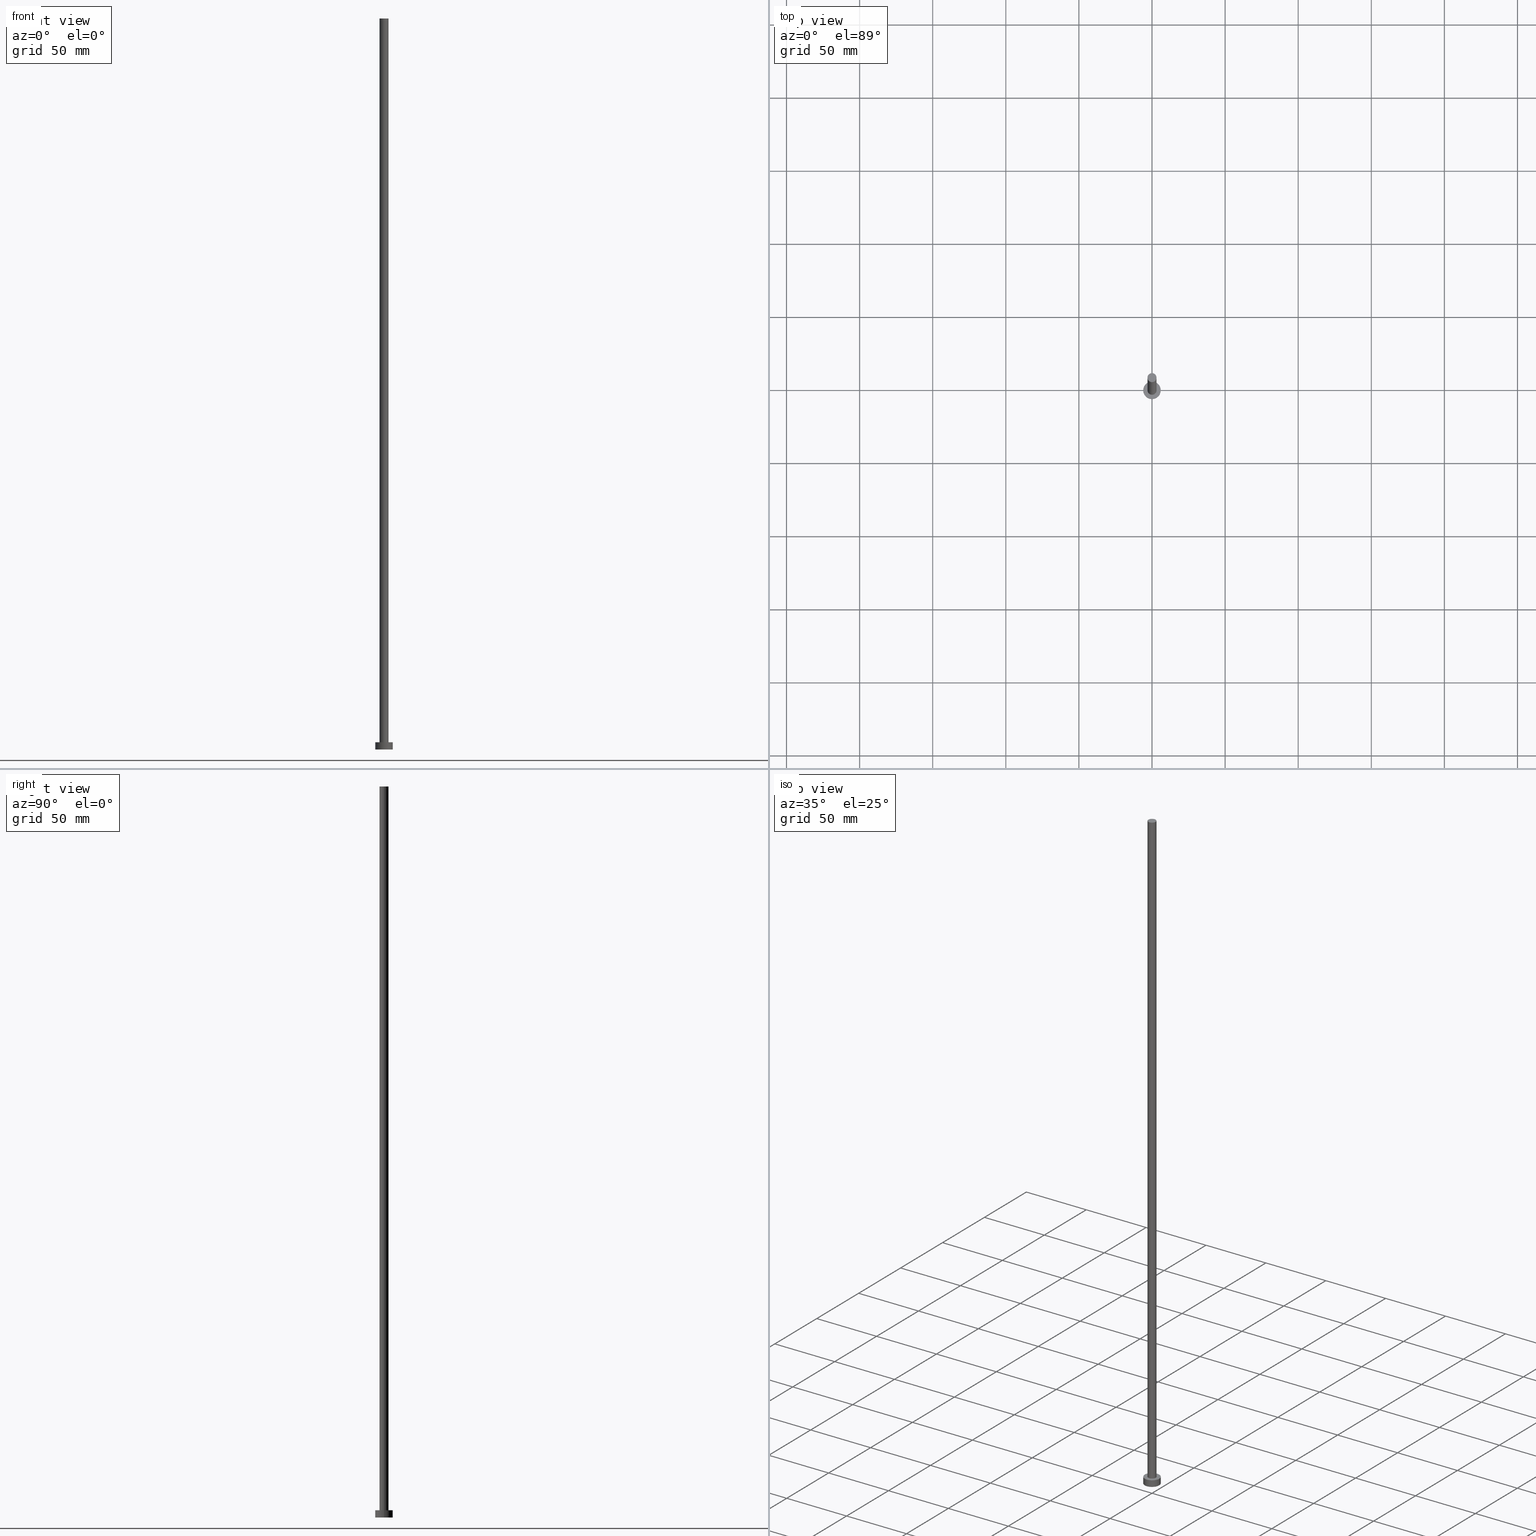
[diagram: canonical four-view strip — front | top / right | iso, engineering-drawing reading convention]
A machine part, canonical four-view strip (front | top / right | iso — engineering-drawing reading convention). The complete STEP part file that produces these views, byte-faithful:
ISO-10303-21;
HEADER;
FILE_DESCRIPTION (( 'STEP AP203' ),
    '1' );
FILE_NAME ('f7f8.STEP',
    '2023-02-13T14:05:02',
    ( '' ),
    ( '' ),
    'SwSTEP 2.0',
    'SolidWorks 2019',
    '' );
FILE_SCHEMA (( 'CONFIG_CONTROL_DESIGN' ));
ENDSEC;

DATA;
#1 = ORIENTED_EDGE ( 'NONE', *, *, #43, .F. ) ;
#2 = CC_DESIGN_PERSON_AND_ORGANIZATION_ASSIGNMENT ( #93, #30, ( #52 ) ) ;
#3 = ADVANCED_FACE ( 'NONE', ( #160 ), #7, .T. ) ;
#4 = DIRECTION ( 'NONE',  ( 0.000000000000000000, 0.000000000000000000, 1.000000000000000000 ) ) ;
#5 = ORIENTED_EDGE ( 'NONE', *, *, #56, .F. ) ;
#6 = APPROVAL_STATUS ( 'not_yet_approved' ) ;
#7 = PLANE ( 'NONE',  #176 ) ;
#8 =( NAMED_UNIT ( * ) PLANE_ANGLE_UNIT ( ) SI_UNIT ( $, .RADIAN. ) );
#9 = CC_DESIGN_SECURITY_CLASSIFICATION ( #219, ( #52 ) ) ;
#10 = ORIENTED_EDGE ( 'NONE', *, *, #56, .T. ) ;
#11 = CARTESIAN_POINT ( 'NONE',  ( 0.000000000000000000, 0.000000000000000000, 500.0000000000000000 ) ) ;
#12 = EDGE_CURVE ( 'NONE', #27, #105, #182, .T. ) ;
#13 = DIRECTION ( 'NONE',  ( 0.000000000000000000, 0.000000000000000000, 1.000000000000000000 ) ) ;
#14 = CARTESIAN_POINT ( 'NONE',  ( 0.000000000000000000, 0.000000000000000000, 0.000000000000000000 ) ) ;
#15 = APPROVAL_ROLE ( '' ) ;
#16 = AXIS2_PLACEMENT_3D ( 'NONE', #161, #209, #114 ) ;
#17 = CALENDAR_DATE ( 2023, 13, 2 ) ;
#18 = EDGE_LOOP ( 'NONE', ( #233, #10 ) ) ;
#19 = DIRECTION ( 'NONE',  ( 0.000000000000000000, 0.000000000000000000, 1.000000000000000000 ) ) ;
#20 = EDGE_LOOP ( 'NONE', ( #92, #107, #78, #185 ) ) ;
#21 = MECHANICAL_CONTEXT ( 'NONE', #39, 'mechanical' ) ;
#22 = CARTESIAN_POINT ( 'NONE',  ( -6.000000000000000888, 0.000000000000000000, 5.000000000000000000 ) ) ;
#23 = PERSON_AND_ORGANIZATION_ROLE ( 'design_owner' ) ;
#24 = ADVANCED_FACE ( 'NONE', ( #32 ), #141, .T. ) ;
#25 = APPROVAL_DATE_TIME ( #253, #199 ) ;
#26 = CYLINDRICAL_SURFACE ( 'NONE', #203, 3.100000000000000089 ) ;
#27 = VERTEX_POINT ( 'NONE', #239 ) ;
#28 = ORGANIZATION ( 'NEUR�EN�', 'NEUR�EN�', '' ) ;
#29 = EDGE_CURVE ( 'NONE', #247, #53, #153, .T. ) ;
#30 = PERSON_AND_ORGANIZATION_ROLE ( 'design_supplier' ) ;
#31 = VERTEX_POINT ( 'NONE', #244 ) ;
#32 = FACE_OUTER_BOUND ( 'NONE', #20, .T. ) ;
#33 = ORIENTED_EDGE ( 'NONE', *, *, #55, .T. ) ;
#34 = CIRCLE ( 'NONE', #196, 6.000000000000000888 ) ;
#35 = DATE_AND_TIME ( #186, #60 ) ;
#36 = EDGE_CURVE ( 'NONE', #105, #27, #210, .T. ) ;
#37 = PERSON_AND_ORGANIZATION ( #187, #28 ) ;
#38 = PLANE ( 'NONE',  #108 ) ;
#39 = APPLICATION_CONTEXT ( 'configuration controlled 3d designs of mechanical parts and assemblies' ) ;
#40 = ORIENTED_EDGE ( 'NONE', *, *, #12, .F. ) ;
#41 = CARTESIAN_POINT ( 'NONE',  ( 6.000000000000000888, 7.347880794884120722E-16, 0.000000000000000000 ) ) ;
#42 = CIRCLE ( 'NONE', #162, 3.100000000000000089 ) ;
#43 = EDGE_CURVE ( 'NONE', #105, #247, #136, .T. ) ;
#44 = AXIS2_PLACEMENT_3D ( 'NONE', #192, #63, #147 ) ;
#45 = DESIGN_CONTEXT ( 'detailed design', #89, 'design' ) ;
#46 = APPROVAL_DATE_TIME ( #227, #214 ) ;
#47 = VECTOR ( 'NONE', #222, 1000.000000000000000 ) ;
#48 = DIRECTION ( 'NONE',  ( 1.000000000000000000, 0.000000000000000000, 0.000000000000000000 ) ) ;
#49 = DIRECTION ( 'NONE',  ( 0.000000000000000000, 0.000000000000000000, 1.000000000000000000 ) ) ;
#50 = ORIENTED_EDGE ( 'NONE', *, *, #36, .T. ) ;
#51 = DIRECTION ( 'NONE',  ( 1.000000000000000000, 0.000000000000000000, 0.000000000000000000 ) ) ;
#52 = PRODUCT_DEFINITION_FORMATION_WITH_SPECIFIED_SOURCE ( 'LIBOVOLN�', '', #146, .NOT_KNOWN. ) ;
#53 = VERTEX_POINT ( 'NONE', #41 ) ;
#54 = DIRECTION ( 'NONE',  ( 1.000000000000000000, 0.000000000000000000, -0.000000000000000000 ) ) ;
#55 = EDGE_CURVE ( 'NONE', #27, #53, #200, .T. ) ;
#56 = EDGE_CURVE ( 'NONE', #130, #31, #42, .T. ) ;
#57 = APPROVAL_DATE_TIME ( #213, #232 ) ;
#58 = DIRECTION ( 'NONE',  ( -0.000000000000000000, -0.000000000000000000, -1.000000000000000000 ) ) ;
#59 = ADVANCED_BREP_SHAPE_REPRESENTATION ( 'f7f8', ( #62, #44 ), #238 ) ;
#60 = LOCAL_TIME ( 15, 5, 2.000000000000000000, #61 ) ;
#61 = COORDINATED_UNIVERSAL_TIME_OFFSET ( 1, 0, .AHEAD. ) ;
#62 = MANIFOLD_SOLID_BREP ( 'P�idat vysunut�m3', #250 ) ;
#63 = DIRECTION ( 'NONE',  ( 0.000000000000000000, 0.000000000000000000, 1.000000000000000000 ) ) ;
#64 = ORIENTED_EDGE ( 'NONE', *, *, #197, .T. ) ;
#65 = AXIS2_PLACEMENT_3D ( 'NONE', #14, #193, #245 ) ;
#66 = CIRCLE ( 'NONE', #103, 3.100000000000000089 ) ;
#67 = DIRECTION ( 'NONE',  ( 1.000000000000000000, 0.000000000000000000, 0.000000000000000000 ) ) ;
#68 = EDGE_CURVE ( 'NONE', #129, #254, #195, .T. ) ;
#69 = DIRECTION ( 'NONE',  ( -0.000000000000000000, -0.000000000000000000, -1.000000000000000000 ) ) ;
#70 = UNCERTAINTY_MEASURE_WITH_UNIT (LENGTH_MEASURE( 1.000000000000000082E-05 ), #143, 'distance_accuracy_value', 'NONE');
#71 = AXIS2_PLACEMENT_3D ( 'NONE', #159, #113, #205 ) ;
#72 = PERSON_AND_ORGANIZATION ( #187, #28 ) ;
#73 = CARTESIAN_POINT ( 'NONE',  ( 0.000000000000000000, 0.000000000000000000, 5.000000000000000000 ) ) ;
#74 = DIRECTION ( 'NONE',  ( 1.000000000000000000, 0.000000000000000000, -0.000000000000000000 ) ) ;
#75 = CARTESIAN_POINT ( 'NONE',  ( 0.000000000000000000, 0.000000000000000000, 500.0000000000000000 ) ) ;
#76 = ORIENTED_EDGE ( 'NONE', *, *, #83, .T. ) ;
#77 = LOCAL_TIME ( 15, 5, 2.000000000000000000, #221 ) ;
#78 = ORIENTED_EDGE ( 'NONE', *, *, #43, .T. ) ;
#79 = DIRECTION ( 'NONE',  ( 1.000000000000000000, 0.000000000000000000, 0.000000000000000000 ) ) ;
#80 = DIRECTION ( 'NONE',  ( 1.000000000000000000, 0.000000000000000000, 0.000000000000000000 ) ) ;
#81 = CARTESIAN_POINT ( 'NONE',  ( 3.100000000000000089, 3.796405077356794918E-16, 500.0000000000000000 ) ) ;
#82 = AXIS2_PLACEMENT_3D ( 'NONE', #173, #119, #181 ) ;
#83 = EDGE_CURVE ( 'NONE', #31, #129, #224, .T. ) ;
#84 = CARTESIAN_POINT ( 'NONE',  ( 6.000000000000000888, 7.347880794884120722E-16, 5.000000000000000000 ) ) ;
#85 = ORIENTED_EDGE ( 'NONE', *, *, #83, .F. ) ;
#86 = AXIS2_PLACEMENT_3D ( 'NONE', #73, #138, #80 ) ;
#87 = PERSON_AND_ORGANIZATION ( #187, #28 ) ;
#88 = CARTESIAN_POINT ( 'NONE',  ( 3.100000000000000089, 3.796405077356794918E-16, 500.0000000000000000 ) ) ;
#89 = APPLICATION_CONTEXT ( 'configuration controlled 3d designs of mechanical parts and assemblies' ) ;
#90 = CC_DESIGN_PERSON_AND_ORGANIZATION_ASSIGNMENT ( #248, #132, ( #171 ) ) ;
#91 = PRODUCT_RELATED_PRODUCT_CATEGORY ( 'detail', '', ( #146 ) ) ;
#92 = ORIENTED_EDGE ( 'NONE', *, *, #55, .F. ) ;
#93 = PERSON_AND_ORGANIZATION ( #187, #28 ) ;
#94 = CIRCLE ( 'NONE', #206, 3.100000000000000089 ) ;
#95 = VECTOR ( 'NONE', #69, 1000.000000000000000 ) ;
#96 = EDGE_LOOP ( 'NONE', ( #5, #131, #112, #85 ) ) ;
#97 = DIRECTION ( 'NONE',  ( -0.000000000000000000, -0.000000000000000000, -1.000000000000000000 ) ) ;
#98 = DIRECTION ( 'NONE',  ( 1.000000000000000000, 0.000000000000000000, 0.000000000000000000 ) ) ;
#99 = CARTESIAN_POINT ( 'NONE',  ( 3.100000000000000089, 3.796405077356794918E-16, 5.000000000000000000 ) ) ;
#100 = CALENDAR_DATE ( 2023, 13, 2 ) ;
#101 = DIRECTION ( 'NONE',  ( -1.000000000000000000, 0.000000000000000000, 0.000000000000000000 ) ) ;
#102 = DIRECTION ( 'NONE',  ( -0.000000000000000000, -0.000000000000000000, -1.000000000000000000 ) ) ;
#103 = AXIS2_PLACEMENT_3D ( 'NONE', #251, #194, #67 ) ;
#104 = CALENDAR_DATE ( 2023, 13, 2 ) ;
#105 = VERTEX_POINT ( 'NONE', #211 ) ;
#106 = PERSON_AND_ORGANIZATION_ROLE ( 'classification_officer' ) ;
#107 = ORIENTED_EDGE ( 'NONE', *, *, #36, .F. ) ;
#108 = AXIS2_PLACEMENT_3D ( 'NONE', #201, #19, #74 ) ;
#109 = SECURITY_CLASSIFICATION_LEVEL ( 'unclassified' ) ;
#110 = PERSON_AND_ORGANIZATION_ROLE ( 'creator' ) ;
#111 = ORIENTED_EDGE ( 'NONE', *, *, #172, .F. ) ;
#112 = ORIENTED_EDGE ( 'NONE', *, *, #172, .T. ) ;
#113 = DIRECTION ( 'NONE',  ( -0.000000000000000000, -0.000000000000000000, -1.000000000000000000 ) ) ;
#114 = DIRECTION ( 'NONE',  ( 1.000000000000000000, 0.000000000000000000, 0.000000000000000000 ) ) ;
#115 = COORDINATED_UNIVERSAL_TIME_OFFSET ( 1, 0, .AHEAD. ) ;
#116 = PERSON_AND_ORGANIZATION ( #187, #28 ) ;
#117 = PLANE ( 'NONE',  #65 ) ;
#118 = CARTESIAN_POINT ( 'NONE',  ( 0.000000000000000000, 0.000000000000000000, 5.000000000000000000 ) ) ;
#119 = DIRECTION ( 'NONE',  ( -0.000000000000000000, -0.000000000000000000, -1.000000000000000000 ) ) ;
#120 = APPROVAL_ROLE ( '' ) ;
#121 = CARTESIAN_POINT ( 'NONE',  ( -6.000000000000000888, 0.000000000000000000, 0.000000000000000000 ) ) ;
#122 = LINE ( 'NONE', #88, #95 ) ;
#123 = AXIS2_PLACEMENT_3D ( 'NONE', #118, #246, #79 ) ;
#124 = CC_DESIGN_DATE_AND_TIME_ASSIGNMENT ( #252, #133, ( #219 ) ) ;
#125 = CYLINDRICAL_SURFACE ( 'NONE', #155, 6.000000000000000888 ) ;
#126 = APPROVAL_PERSON_ORGANIZATION ( #37, #232, #120 ) ;
#127 = ADVANCED_FACE ( 'NONE', ( #249 ), #117, .F. ) ;
#128 = LOCAL_TIME ( 15, 5, 2.000000000000000000, #225 ) ;
#129 = VERTEX_POINT ( 'NONE', #218 ) ;
#130 = VERTEX_POINT ( 'NONE', #81 ) ;
#131 = ORIENTED_EDGE ( 'NONE', *, *, #237, .T. ) ;
#132 = PERSON_AND_ORGANIZATION_ROLE ( 'creator' ) ;
#133 = DATE_TIME_ROLE ( 'classification_date' ) ;
#134 = APPROVAL_PERSON_ORGANIZATION ( #148, #199, #212 ) ;
#135 = ADVANCED_FACE ( 'NONE', ( #158 ), #217, .T. ) ;
#136 = LINE ( 'NONE', #22, #47 ) ;
#137 = EDGE_CURVE ( 'NONE', #31, #130, #94, .T. ) ;
#138 = DIRECTION ( 'NONE',  ( 0.000000000000000000, 0.000000000000000000, 1.000000000000000000 ) ) ;
#139 = CC_DESIGN_PERSON_AND_ORGANIZATION_ASSIGNMENT ( #87, #110, ( #52 ) ) ;
#140 = CC_DESIGN_APPROVAL ( #232, ( #171 ) ) ;
#141 = CYLINDRICAL_SURFACE ( 'NONE', #71, 6.000000000000000888 ) ;
#142 = VECTOR ( 'NONE', #58, 1000.000000000000000 ) ;
#143 =( LENGTH_UNIT ( ) NAMED_UNIT ( * ) SI_UNIT ( .MILLI., .METRE. ) );
#144 = EDGE_LOOP ( 'NONE', ( #50, #240 ) ) ;
#145 = ORIENTED_EDGE ( 'NONE', *, *, #68, .T. ) ;
#146 = PRODUCT ( 'f7f8', 'f7f8', '', ( #21 ) ) ;
#147 = DIRECTION ( 'NONE',  ( 1.000000000000000000, 0.000000000000000000, 0.000000000000000000 ) ) ;
#148 = PERSON_AND_ORGANIZATION ( #187, #28 ) ;
#149 = PRODUCT_DEFINITION_SHAPE ( 'NONE', 'NONE',  #171 ) ;
#150 = DATE_TIME_ROLE ( 'creation_date' ) ;
#151 = CARTESIAN_POINT ( 'NONE',  ( 0.000000000000000000, 0.000000000000000000, 0.000000000000000000 ) ) ;
#152 = ADVANCED_FACE ( 'NONE', ( #236 ), #125, .T. ) ;
#153 = CIRCLE ( 'NONE', #229, 6.000000000000000888 ) ;
#154 = FACE_OUTER_BOUND ( 'NONE', #96, .T. ) ;
#155 = AXIS2_PLACEMENT_3D ( 'NONE', #204, #102, #101 ) ;
#156 = DIRECTION ( 'NONE',  ( 0.000000000000000000, 0.000000000000000000, 1.000000000000000000 ) ) ;
#157 = ORIENTED_EDGE ( 'NONE', *, *, #29, .F. ) ;
#158 = FACE_OUTER_BOUND ( 'NONE', #163, .T. ) ;
#159 = CARTESIAN_POINT ( 'NONE',  ( 0.000000000000000000, 0.000000000000000000, 5.000000000000000000 ) ) ;
#160 = FACE_OUTER_BOUND ( 'NONE', #18, .T. ) ;
#161 = CARTESIAN_POINT ( 'NONE',  ( 0.000000000000000000, 0.000000000000000000, 5.000000000000000000 ) ) ;
#162 = AXIS2_PLACEMENT_3D ( 'NONE', #202, #156, #220 ) ;
#163 = EDGE_LOOP ( 'NONE', ( #207, #241, #76, #145 ) ) ;
#164 = CALENDAR_DATE ( 2023, 13, 2 ) ;
#165 = CARTESIAN_POINT ( 'NONE',  ( -3.100000000000000089, 0.000000000000000000, 500.0000000000000000 ) ) ;
#166 = DIRECTION ( 'NONE',  ( -1.000000000000000000, 0.000000000000000000, 0.000000000000000000 ) ) ;
#167 = FACE_BOUND ( 'NONE', #215, .T. ) ;
#168 = APPROVAL_PERSON_ORGANIZATION ( #116, #214, #15 ) ;
#169 = APPROVAL_STATUS ( 'not_yet_approved' ) ;
#170 = LOCAL_TIME ( 15, 5, 2.000000000000000000, #175 ) ;
#171 = PRODUCT_DEFINITION ( 'NEZN�M�', '', #52, #45 ) ;
#172 = EDGE_CURVE ( 'NONE', #254, #129, #66, .T. ) ;
#173 = CARTESIAN_POINT ( 'NONE',  ( 0.000000000000000000, 0.000000000000000000, 500.0000000000000000 ) ) ;
#174 = DIRECTION ( 'NONE',  ( -0.000000000000000000, -0.000000000000000000, -1.000000000000000000 ) ) ;
#175 = COORDINATED_UNIVERSAL_TIME_OFFSET ( 1, 0, .AHEAD. ) ;
#176 = AXIS2_PLACEMENT_3D ( 'NONE', #75, #223, #54 ) ;
#177 = EDGE_LOOP ( 'NONE', ( #40, #33, #64, #1 ) ) ;
#178 = APPLICATION_PROTOCOL_DEFINITION ( 'international standard', 'config_control_design', 1994, #89 ) ;
#179 = CC_DESIGN_APPROVAL ( #214, ( #52 ) ) ;
#180 = CARTESIAN_POINT ( 'NONE',  ( 0.000000000000000000, 0.000000000000000000, 500.0000000000000000 ) ) ;
#181 = DIRECTION ( 'NONE',  ( -1.000000000000000000, 0.000000000000000000, 0.000000000000000000 ) ) ;
#182 = CIRCLE ( 'NONE', #16, 6.000000000000000888 ) ;
#183 = CC_DESIGN_PERSON_AND_ORGANIZATION_ASSIGNMENT ( #243, #106, ( #219 ) ) ;
#184 = APPLICATION_PROTOCOL_DEFINITION ( 'international standard', 'config_control_design', 1994, #39 ) ;
#185 = ORIENTED_EDGE ( 'NONE', *, *, #29, .T. ) ;
#186 = CALENDAR_DATE ( 2023, 13, 2 ) ;
#187 = PERSON ( 'NEUR�EN�', 'NEUR�EN�', 'NEUR�EN�', ('NEUR�EN�'), ('NEUR�EN�'), ('NEUR�EN�') ) ;
#188 = ORIENTED_EDGE ( 'NONE', *, *, #68, .F. ) ;
#189 = CC_DESIGN_DATE_AND_TIME_ASSIGNMENT ( #35, #150, ( #171 ) ) ;
#190 = CARTESIAN_POINT ( 'NONE',  ( 0.000000000000000000, 0.000000000000000000, 0.000000000000000000 ) ) ;
#191 = CC_DESIGN_APPROVAL ( #199, ( #219 ) ) ;
#192 = CARTESIAN_POINT ( 'NONE',  ( 0.000000000000000000, 0.000000000000000000, 0.000000000000000000 ) ) ;
#193 = DIRECTION ( 'NONE',  ( 0.000000000000000000, 0.000000000000000000, 1.000000000000000000 ) ) ;
#194 = DIRECTION ( 'NONE',  ( 0.000000000000000000, 0.000000000000000000, 1.000000000000000000 ) ) ;
#195 = CIRCLE ( 'NONE', #86, 3.100000000000000089 ) ;
#196 = AXIS2_PLACEMENT_3D ( 'NONE', #151, #13, #98 ) ;
#197 = EDGE_CURVE ( 'NONE', #53, #247, #34, .T. ) ;
#198 = VECTOR ( 'NONE', #174, 1000.000000000000000 ) ;
#199 = APPROVAL ( #234, 'NEUR�EN�' ) ;
#200 = LINE ( 'NONE', #84, #198 ) ;
#201 = CARTESIAN_POINT ( 'NONE',  ( 0.000000000000000000, 0.000000000000000000, 5.000000000000000000 ) ) ;
#202 = CARTESIAN_POINT ( 'NONE',  ( 0.000000000000000000, 0.000000000000000000, 500.0000000000000000 ) ) ;
#203 = AXIS2_PLACEMENT_3D ( 'NONE', #11, #97, #166 ) ;
#204 = CARTESIAN_POINT ( 'NONE',  ( 0.000000000000000000, 0.000000000000000000, 5.000000000000000000 ) ) ;
#205 = DIRECTION ( 'NONE',  ( -1.000000000000000000, 0.000000000000000000, 0.000000000000000000 ) ) ;
#206 = AXIS2_PLACEMENT_3D ( 'NONE', #180, #4, #48 ) ;
#207 = ORIENTED_EDGE ( 'NONE', *, *, #237, .F. ) ;
#208 = ORIENTED_EDGE ( 'NONE', *, *, #197, .F. ) ;
#209 = DIRECTION ( 'NONE',  ( 0.000000000000000000, 0.000000000000000000, 1.000000000000000000 ) ) ;
#210 = CIRCLE ( 'NONE', #123, 6.000000000000000888 ) ;
#211 = CARTESIAN_POINT ( 'NONE',  ( -6.000000000000000888, 0.000000000000000000, 5.000000000000000000 ) ) ;
#212 = APPROVAL_ROLE ( '' ) ;
#213 = DATE_AND_TIME ( #164, #77 ) ;
#214 = APPROVAL ( #169, 'NEUR�EN�' ) ;
#215 = EDGE_LOOP ( 'NONE', ( #188, #111 ) ) ;
#216 = ADVANCED_FACE ( 'NONE', ( #167, #226 ), #38, .T. ) ;
#217 = CYLINDRICAL_SURFACE ( 'NONE', #82, 3.100000000000000089 ) ;
#218 = CARTESIAN_POINT ( 'NONE',  ( -3.100000000000000089, 0.000000000000000000, 5.000000000000000000 ) ) ;
#219 = SECURITY_CLASSIFICATION ( '', '', #109 ) ;
#220 = DIRECTION ( 'NONE',  ( 1.000000000000000000, 0.000000000000000000, 0.000000000000000000 ) ) ;
#221 = COORDINATED_UNIVERSAL_TIME_OFFSET ( 1, 0, .AHEAD. ) ;
#222 = DIRECTION ( 'NONE',  ( -0.000000000000000000, -0.000000000000000000, -1.000000000000000000 ) ) ;
#223 = DIRECTION ( 'NONE',  ( 0.000000000000000000, 0.000000000000000000, 1.000000000000000000 ) ) ;
#224 = LINE ( 'NONE', #165, #142 ) ;
#225 = COORDINATED_UNIVERSAL_TIME_OFFSET ( 1, 0, .AHEAD. ) ;
#226 = FACE_OUTER_BOUND ( 'NONE', #144, .T. ) ;
#227 = DATE_AND_TIME ( #100, #128 ) ;
#228 = ADVANCED_FACE ( 'NONE', ( #154 ), #26, .T. ) ;
#229 = AXIS2_PLACEMENT_3D ( 'NONE', #190, #49, #51 ) ;
#230 = LOCAL_TIME ( 15, 5, 2.000000000000000000, #115 ) ;
#231 = EDGE_LOOP ( 'NONE', ( #157, #208 ) ) ;
#232 = APPROVAL ( #6, 'NEUR�EN�' ) ;
#233 = ORIENTED_EDGE ( 'NONE', *, *, #137, .T. ) ;
#234 = APPROVAL_STATUS ( 'not_yet_approved' ) ;
#235 = SHAPE_DEFINITION_REPRESENTATION ( #149, #59 ) ;
#236 = FACE_OUTER_BOUND ( 'NONE', #177, .T. ) ;
#237 = EDGE_CURVE ( 'NONE', #130, #254, #122, .T. ) ;
#238 =( GEOMETRIC_REPRESENTATION_CONTEXT ( 3 ) GLOBAL_UNCERTAINTY_ASSIGNED_CONTEXT ( ( #70 ) ) GLOBAL_UNIT_ASSIGNED_CONTEXT ( ( #143, #8, #242 ) ) REPRESENTATION_CONTEXT ( 'NONE', 'WORKASPACE' ) );
#239 = CARTESIAN_POINT ( 'NONE',  ( 6.000000000000000888, 7.347880794884120722E-16, 5.000000000000000000 ) ) ;
#240 = ORIENTED_EDGE ( 'NONE', *, *, #12, .T. ) ;
#241 = ORIENTED_EDGE ( 'NONE', *, *, #137, .F. ) ;
#242 =( NAMED_UNIT ( * ) SI_UNIT ( $, .STERADIAN. ) SOLID_ANGLE_UNIT ( ) );
#243 = PERSON_AND_ORGANIZATION ( #187, #28 ) ;
#244 = CARTESIAN_POINT ( 'NONE',  ( -3.100000000000000089, 0.000000000000000000, 500.0000000000000000 ) ) ;
#245 = DIRECTION ( 'NONE',  ( 1.000000000000000000, 0.000000000000000000, -0.000000000000000000 ) ) ;
#246 = DIRECTION ( 'NONE',  ( 0.000000000000000000, 0.000000000000000000, 1.000000000000000000 ) ) ;
#247 = VERTEX_POINT ( 'NONE', #121 ) ;
#248 = PERSON_AND_ORGANIZATION ( #187, #28 ) ;
#249 = FACE_OUTER_BOUND ( 'NONE', #231, .T. ) ;
#250 = CLOSED_SHELL ( 'NONE', ( #228, #152, #24, #216, #127, #135, #3 ) ) ;
#251 = CARTESIAN_POINT ( 'NONE',  ( 0.000000000000000000, 0.000000000000000000, 5.000000000000000000 ) ) ;
#252 = DATE_AND_TIME ( #104, #170 ) ;
#253 = DATE_AND_TIME ( #17, #230 ) ;
#254 = VERTEX_POINT ( 'NONE', #99 ) ;
#255 = CC_DESIGN_PERSON_AND_ORGANIZATION_ASSIGNMENT ( #72, #23, ( #146 ) ) ;
ENDSEC;
END-ISO-10303-21;
